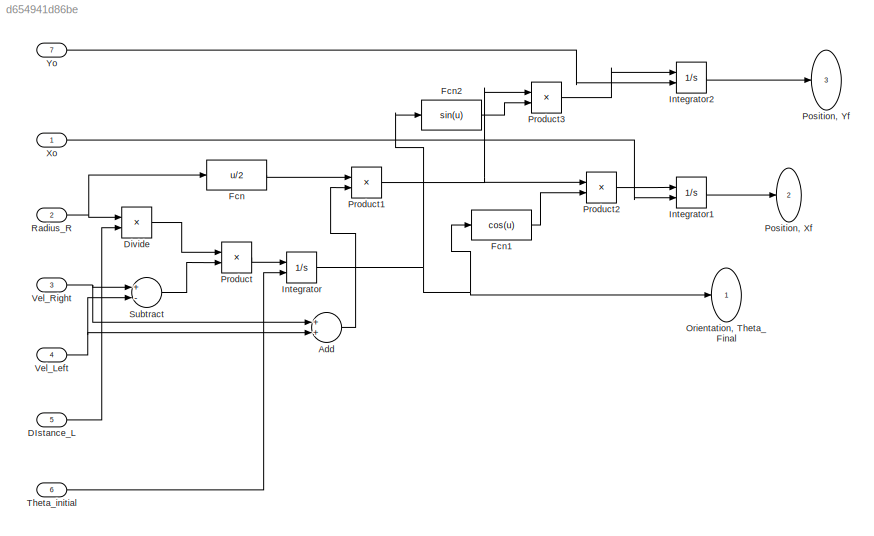
MODEL slx_d654941d86be
KIND model
CONFIG AbsTol = auto
CONFIG EnableMultiTasking = off
CONFIG FixedStep = auto
CONFIG MaxStep = auto
CONFIG MinStep = auto
CONFIG RelTol = 1e-3
CONFIG SampleTimeConstraint = Unconstrained
CONFIG Solver = VariableStepAuto
CONFIG SolverName = VariableStepAuto
CONFIG StartTime = 0.0
CONFIG StopTime = 10.0
BLOCK [Inport]  Theta_initial 
  IconDisplay = Port number
  Port = 6
BLOCK [Sum] Add
  InputSameDT = off
  OutDataTypeStr = Inherit: Inherit via internal rule
  Ports = [2, 1]
  SaturateOnIntegerOverflow = off
BLOCK [Inport] DIstance_L 
  IconDisplay = Port number
  Port = 5
BLOCK [Product] Divide
  InputSameDT = off
  Inputs = */
  OutDataTypeStr = Inherit: Inherit via internal rule
  Ports = [2, 1]
  RndMeth = Floor
  SaturateOnIntegerOverflow = off
BLOCK [Fcn] Fcn
  Expr = u/2
BLOCK [Fcn] Fcn1
  Expr = cos(u)
BLOCK [Fcn] Fcn2
  Expr = sin(u)
BLOCK [Integrator] Integrator
  InitialConditionSource = external
  Ports = [2, 1]
BLOCK [Integrator] Integrator1
  InitialConditionSource = external
  Ports = [2, 1]
BLOCK [Integrator] Integrator2
  InitialConditionSource = external
  Ports = [2, 1]
BLOCK [Outport] Orientation, Theta_Final 
  IconDisplay = Port number
BLOCK [Outport] Position, Xf 
  IconDisplay = Port number
  Port = 2
BLOCK [Outport] Position, Yf
  IconDisplay = Port number
  Port = 3
BLOCK [Product] Product
  InputSameDT = off
  OutDataTypeStr = Inherit: Inherit via internal rule
  Ports = [2, 1]
  RndMeth = Floor
  SaturateOnIntegerOverflow = off
BLOCK [Product] Product1
  InputSameDT = off
  OutDataTypeStr = Inherit: Inherit via internal rule
  Ports = [2, 1]
  RndMeth = Floor
  SaturateOnIntegerOverflow = off
BLOCK [Product] Product2
  InputSameDT = off
  OutDataTypeStr = Inherit: Inherit via internal rule
  Ports = [2, 1]
  RndMeth = Floor
  SaturateOnIntegerOverflow = off
BLOCK [Product] Product3
  InputSameDT = off
  OutDataTypeStr = Inherit: Inherit via internal rule
  Ports = [2, 1]
  RndMeth = Floor
  SaturateOnIntegerOverflow = off
BLOCK [Inport] Radius_R 
  IconDisplay = Port number
  Port = 2
BLOCK [Sum] Subtract
  InputSameDT = off
  Inputs = +-
  OutDataTypeStr = Inherit: Inherit via internal rule
  Ports = [2, 1]
  SaturateOnIntegerOverflow = off
BLOCK [Inport] Vel_Left 
  IconDisplay = Port number
  Port = 4
BLOCK [Inport] Vel_Right 
  IconDisplay = Port number
  Port = 3
BLOCK [Inport] Xo
  IconDisplay = Port number
BLOCK [Inport] Yo 
  IconDisplay = Port number
  Port = 7
LINE  Theta_initial :1 -> Integrator:2
LINE Add:1 -> Product1:2
LINE DIstance_L :1 -> Divide:2
LINE Divide:1 -> Product:1
LINE Fcn1:1 -> Product2:2
LINE Fcn2:1 -> Product3:2
LINE Fcn:1 -> Product1:1
LINE Integrator1:1 -> Position, Xf :1
LINE Integrator2:1 -> Position, Yf:1
NET Integrator:1 -> Fcn1:1, Fcn2:1, Orientation, Theta_Final :1
NET Product1:1 -> Product2:1, Product3:1
LINE Product2:1 -> Integrator1:1
LINE Product3:1 -> Integrator2:1
LINE Product:1 -> Integrator:1
NET Radius_R :1 -> Divide:1, Fcn:1
LINE Subtract:1 -> Product:2
NET Vel_Left :1 -> Add:2, Subtract:2
NET Vel_Right :1 -> Add:1, Subtract:1
LINE Xo:1 -> Integrator1:2
LINE Yo :1 -> Integrator2:2
note: NET lines group one-source signal fan-out (src -> all destinations, sorted); 1:1 wires keep LINE
